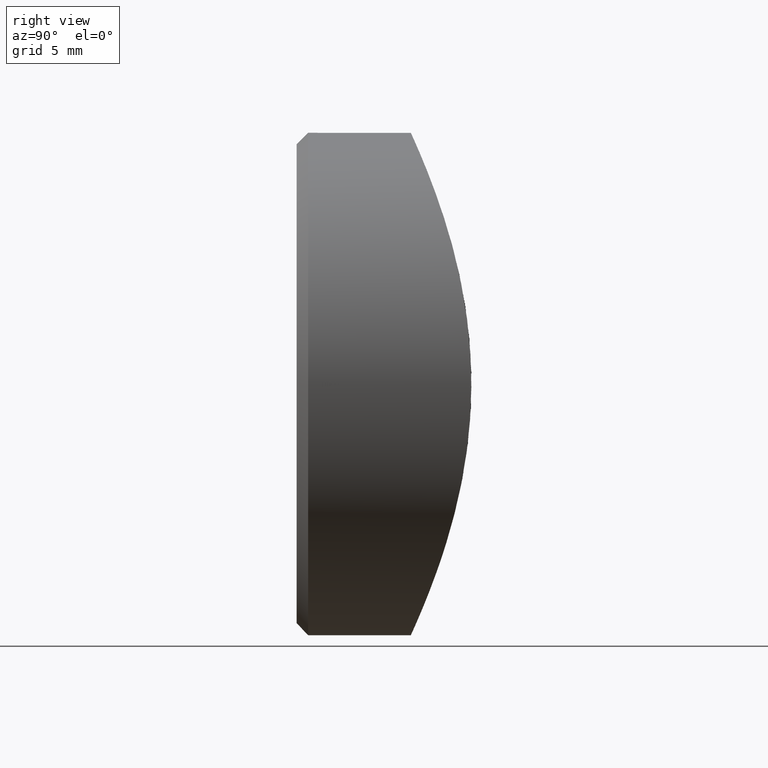
[diagram: clean part render]
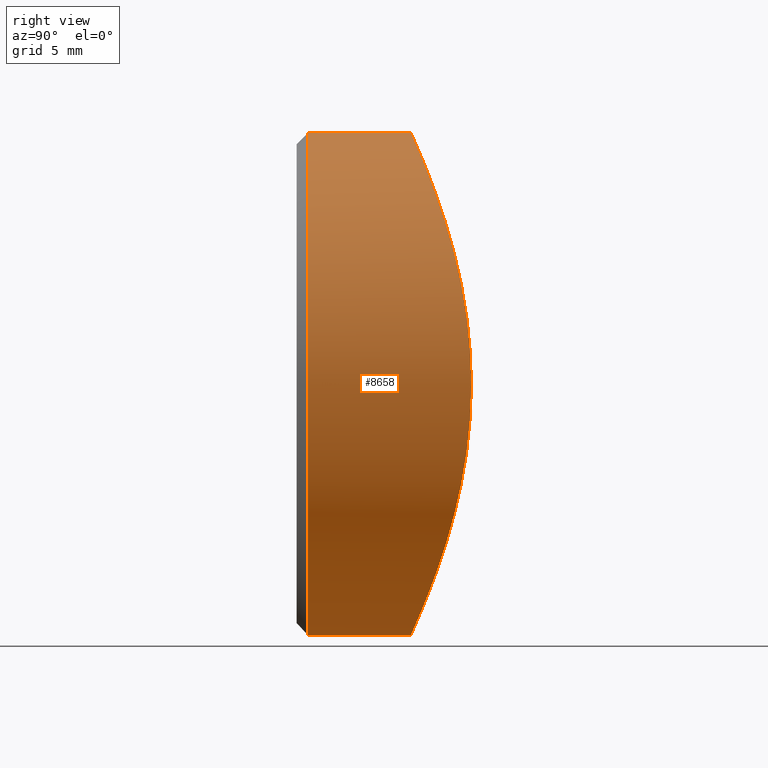
[diagram: same view with one face highlighted and labeled with its STEP entity id]
A machine part, right view. The second image highlights one B-rep face of the part: STEP entity #8658.
In plain terms, the highlighted cylindrical surface (bore or boss wall) has radius 11 mm, axis along (-0, -1, -0).
Its self-contained STEP definition (entity closure, byte-faithful):
#62 = B_SPLINE_CURVE_WITH_KNOTS ( 'NONE', 3,
 ( #3313, #4076, #5892, #7827, #1372, #6009, #479, #7905, #7743, #351, #6948, #3150, #10648, #7866, #392, #6061, #11429, #2350, #4201, #8827, #8785, #9577, #3273, #10611, #5126, #4999, #11549, #515, #4242, #9744, #5166, #2542, #8989, #562, #3353, #9785, #1536, #8908, #7196, #721, #9902, #4397, #6143, #7982, #11590, #7035, #4279, #7155, #8866, #3390, #5328, #6219, #2506, #1575, #6099, #10694, #1653, #3505, #11666, #10732, #6259, #1496, #10771, #7944, #5208, #11711, #680, #8946, #10813, #6179, #8058, #7114, #4441, #11630, #9823, #5246, #602, #11752, #1610, #7077, #8016, #3429, #9865, #8092, #4355, #2578, #5287, #9026, #9937, #10857, #8217, #1820, #3583, #6339, #4591, #10016 ),
 .UNSPECIFIED., .T., .F.,
 ( 4, 2, 2, 2, 2, 2, 2, 2, 2, 2, 2, 2, 2, 2, 2, 2, 2, 2, 2, 2, 2, 2, 2, 2, 2, 2, 2, 2, 2, 2, 2, 2, 2, 2, 2, 2, 2, 2, 2, 2, 2, 2, 2, 2, 2, 2, 2, 4 ),
 ( 0.000000000000000000, 0.002178608054429472061, 0.003267912081644207007, 0.004357216108858942387, 0.006535824163288415749, 0.007625128190503151562, 0.008714432217717888243, 0.009803736244932624924, 0.01089304027214735814, 0.01307164832657683150, 0.01416095235379156471, 0.01525025638100629966, 0.01742886443543576608, 0.01851816846265050276, 0.01960747248986523944, 0.02069677651707997612, 0.02178608054429470933, 0.02396468859872417922, 0.02614329665315364565, 0.02832190470758311901, 0.02941120873479785222, 0.03050051276201259237, 0.03267912081644205879, 0.03485772887087152522, 0.03594703289808626190, 0.03703633692530099858, 0.03921494497973046500, 0.04030424900694520168, 0.04139355303415993836, 0.04248285706137466811, 0.04357216108858940479, 0.04575076914301888509, 0.04792937719744835151, 0.05010798525187781793, 0.05119728927909255461, 0.05228659330630729130, 0.05337589733352203492, 0.05446520136073676466, 0.05664380941516623802, 0.05773311344238097470, 0.05882241746959570444, 0.06100102552402517780, 0.06317963357845464423, 0.06426893760566937397, 0.06535824163288410371, 0.06753684968731357707, 0.06862615371452830682, 0.06971545774174302268 ),
 .UNSPECIFIED. ) ;
#103 = CYLINDRICAL_SURFACE ( 'NONE', #1829, 11.00000000000000000 ) ;
#351 = CARTESIAN_POINT ( 'NONE',  ( 6.431315587605636708, 5.870073532991685106, -8.931192953940989554 ) ) ;
#392 = CARTESIAN_POINT ( 'NONE',  ( 8.268862911064539745, 6.458450175212102629, -7.263048031895190881 ) ) ;
#479 = CARTESIAN_POINT ( 'NONE',  ( 3.915977832184660112, 5.317220208741857412, -10.28565493891170490 ) ) ;
#515 = CARTESIAN_POINT ( 'NONE',  ( 10.91094150760802073, 7.605267809179670380, 1.444253460282487689 ) ) ;
#558 = EDGE_LOOP ( 'NONE', ( #11410 ) ) ;
#562 = CARTESIAN_POINT ( 'NONE',  ( 9.874944611363643432, 7.109081667782722214, 4.899886083446629570 ) ) ;
#602 = CARTESIAN_POINT ( 'NONE',  ( -10.43131633686770954, 7.366910697036294309, -3.564389067170340653 ) ) ;
#634 = VERTEX_POINT ( 'NONE', #6283 ) ;
#680 = CARTESIAN_POINT ( 'NONE',  ( -10.63401718892599135, 7.466677992951460396, 2.906335998763042827 ) ) ;
#721 = CARTESIAN_POINT ( 'NONE',  ( 5.851328576931715375, 5.717571306728308933, 9.321488921831727836 ) ) ;
#811 = FACE_OUTER_BOUND ( 'NONE', #558, .T. ) ;
#1372 = CARTESIAN_POINT ( 'NONE',  ( 2.876761681339498278, 5.169379376728268305, -10.62341111064048782 ) ) ;
#1496 = CARTESIAN_POINT ( 'NONE',  ( -8.279561685560624440, 6.457397297660646629, 7.277063041026338830 ) ) ;
#1510 = VERTEX_POINT ( 'NONE', #9058 ) ;
#1536 = CARTESIAN_POINT ( 'NONE',  ( 8.287551982738067480, 6.460397381905350400, 7.267586467979562315 ) ) ;
#1575 = CARTESIAN_POINT ( 'NONE',  ( -4.564204123080260800, 5.432796842585724484, 10.01494223412669626 ) ) ;
#1610 = CARTESIAN_POINT ( 'NONE',  ( -9.861381905228441269, 7.104359747628647526, -4.887009018968756280 ) ) ;
#1653 = CARTESIAN_POINT ( 'NONE',  ( -5.830434376454941336, 5.712383562454992791, 9.334485395747128322 ) ) ;
#1820 = CARTESIAN_POINT ( 'NONE',  ( -1.831112998186844587, 5.066882332025191893, -10.85256634668303910 ) ) ;
#1829 = AXIS2_PLACEMENT_3D ( 'NONE', #3925, #3332, #8845 ) ;
#2350 = CARTESIAN_POINT ( 'NONE',  ( 9.532190368181314710, 6.956637530396878155, -5.536169561607874989 ) ) ;
#2506 = CARTESIAN_POINT ( 'NONE',  ( -3.561777640432880698, 5.254456909521188379, 10.43253799227503364 ) ) ;
#2542 = CARTESIAN_POINT ( 'NONE',  ( 10.41570146741584502, 7.361255542780567929, 3.555797768890980315 ) ) ;
#2578 = CARTESIAN_POINT ( 'NONE',  ( -5.849347822948074871, 5.717109365942683930, -9.322616890321899774 ) ) ;
#3150 = CARTESIAN_POINT ( 'NONE',  ( 7.269484953319691911, 6.118294888725597680, -8.263246781034496280 ) ) ;
#3273 = CARTESIAN_POINT ( 'NONE',  ( 10.71001051426899231, 7.504570094164964011, -2.535243297355493031 ) ) ;
#3313 = CARTESIAN_POINT ( 'NONE',  ( 1.084202172485504434E-16, 4.999999999999996447, -11.00000000000000000 ) ) ;
#3332 = DIRECTION ( 'NONE',  ( -0.000000000000000000, -1.000000000000000000, -0.000000000000000000 ) ) ;
#3353 = CARTESIAN_POINT ( 'NONE',  ( 9.536850622506840125, 6.958698308071539884, 5.527643662790154622 ) ) ;
#3390 = CARTESIAN_POINT ( 'NONE',  ( -1.436824161151505796, 5.040009660985223405, 10.91192690383145347 ) ) ;
#3429 = CARTESIAN_POINT ( 'NONE',  ( -8.742573321952479048, 6.633944945074482291, -6.713641661070576916 ) ) ;
#3505 = CARTESIAN_POINT ( 'NONE',  ( -6.421447291611215746, 5.867370338110720951, 8.938209960759646577 ) ) ;
#3583 = CARTESIAN_POINT ( 'NONE',  ( -1.470656143557993678, 5.042032289971624337, -10.90746038294738440 ) ) ;
#3876 = ORIENTED_EDGE ( 'NONE', *, *, #6829, .T. ) ;
#3925 = CARTESIAN_POINT ( 'NONE',  ( 0.000000000000000000, 12.00000000000000000, 0.000000000000000000 ) ) ;
#4076 = CARTESIAN_POINT ( 'NONE',  ( 0.7373352939640648307, 4.999999999999996447, -11.00000000000000000 ) ) ;
#4201 = CARTESIAN_POINT ( 'NONE',  ( 9.869038933788958801, 7.106471848057045015, -4.910430648366249429 ) ) ;
#4242 = CARTESIAN_POINT ( 'NONE',  ( 10.85707551301406504, 7.577964300432519451, 1.804179211245290571 ) ) ;
#4279 = CARTESIAN_POINT ( 'NONE',  ( 0.7475394728106166120, 5.000639928492340402, 10.99859506407430132 ) ) ;
#4355 = CARTESIAN_POINT ( 'NONE',  ( -6.732854687636161017, 5.949523680724785102, -8.727708193182559526 ) ) ;
#4378 = DIRECTION ( 'NONE',  ( 0.000000000000000000, 0.000000000000000000, 1.000000000000000000 ) ) ;
#4397 = CARTESIAN_POINT ( 'NONE',  ( 4.911204265845181105, 5.502445445854513117, 9.849285748434109422 ) ) ;
#4441 = CARTESIAN_POINT ( 'NONE',  ( -10.98317470998035361, 7.642002501483251109, -0.7088608471267813238 ) ) ;
#4591 = CARTESIAN_POINT ( 'NONE',  ( -0.3686676469820269753, 4.999999999999996447, -11.00000000000000178 ) ) ;
#4999 = CARTESIAN_POINT ( 'NONE',  ( 11.00061192498013085, 7.650952631010586202, 0.3453966184975004738 ) ) ;
#5126 = CARTESIAN_POINT ( 'NONE',  ( 10.99872709140375449, 7.649988270675690316, -0.7476955002935699035 ) ) ;
#5166 = CARTESIAN_POINT ( 'NONE',  ( 10.62658207698087764, 7.463322627900607742, 2.864661968324965891 ) ) ;
#5208 = CARTESIAN_POINT ( 'NONE',  ( -9.868145379816949614, 7.106061474000257228, 4.912470034786293738 ) ) ;
#5246 = CARTESIAN_POINT ( 'NONE',  ( -10.64295360786469757, 7.471075141436059219, -2.874660073961584406 ) ) ;
#5287 = CARTESIAN_POINT ( 'NONE',  ( -5.544450198649841788, 5.642847612469666707, -9.507256185149804750 ) ) ;
#5328 = CARTESIAN_POINT ( 'NONE',  ( -1.801419535069120226, 5.064618212083442650, 10.85758647217778972 ) ) ;
#5424 = CARTESIAN_POINT ( 'NONE',  ( 0.000000000000000000, 0.5000000000000004441, 0.000000000000000000 ) ) ;
#5630 = EDGE_LOOP ( 'NONE', ( #3876 ) ) ;
#5892 = CARTESIAN_POINT ( 'NONE',  ( 1.460482144242938096, 5.033668704119548920, -10.92662987896756555 ) ) ;
#6009 = CARTESIAN_POINT ( 'NONE',  ( 3.573101630393023420, 5.263207247782476728, -10.40987829591612979 ) ) ;
#6061 = CARTESIAN_POINT ( 'NONE',  ( 8.719854577397178730, 6.627907214429296090, -6.714915986417163474 ) ) ;
#6084 = EDGE_CURVE ( 'NONE', #634, #634, #7204, .T. ) ;
#6099 = CARTESIAN_POINT ( 'NONE',  ( -4.892674777027119504, 5.498593694250464736, 9.858525424685472771 ) ) ;
#6143 = CARTESIAN_POINT ( 'NONE',  ( 4.588708995713818517, 5.437587158046544467, 10.00358501035350045 ) ) ;
#6179 = CARTESIAN_POINT ( 'NONE',  ( -10.98091897800039973, 7.640847868418018329, 0.7437699704348061935 ) ) ;
#6219 = CARTESIAN_POINT ( 'NONE',  ( -2.871390683612129457, 5.160616340010109937, 10.64350980225284893 ) ) ;
#6259 = CARTESIAN_POINT ( 'NONE',  ( -7.524280627312167624, 6.200524715818435340, 8.031929910891497215 ) ) ;
#6283 = CARTESIAN_POINT ( 'NONE',  ( 0.000000000000000000, 0.5000000000000004441, 11.00000000000000000 ) ) ;
#6339 = CARTESIAN_POINT ( 'NONE',  ( -0.7381113737435325284, 5.008497805639639644, -10.98138029111559533 ) ) ;
#6829 = EDGE_CURVE ( 'NONE', #1510, #1510, #62, .T. ) ;
#6948 = CARTESIAN_POINT ( 'NONE',  ( 6.720146454890202570, 5.952058637799959584, -8.715864298831466073 ) ) ;
#7035 = CARTESIAN_POINT ( 'NONE',  ( 1.470457804476350328, 5.033993559612254920, 10.92594708271581183 ) ) ;
#7077 = CARTESIAN_POINT ( 'NONE',  ( -9.520591750708756962, 6.955058235397883593, -5.521597861904218085 ) ) ;
#7114 = CARTESIAN_POINT ( 'NONE',  ( -11.00055092638194942, 7.650921421657838728, -0.3460681376236847129 ) ) ;
#7155 = CARTESIAN_POINT ( 'NONE',  ( -0.3423183802106280482, 4.999693689142266528, 11.00067249254755097 ) ) ;
#7196 = CARTESIAN_POINT ( 'NONE',  ( 6.742036676809132878, 5.952058630764645031, 8.721109378327863482 ) ) ;
#7204 = CIRCLE ( 'NONE', #11762, 11.00000000000000000 ) ;
#7743 = CARTESIAN_POINT ( 'NONE',  ( 5.540298174689874067, 5.636072592561188976, -9.529806252340371486 ) ) ;
#7827 = CARTESIAN_POINT ( 'NONE',  ( 2.525208552206620993, 5.129741725276113051, -10.71234726468770937 ) ) ;
#7866 = CARTESIAN_POINT ( 'NONE',  ( 8.031209664304178375, 6.372997889905265723, -7.524933132409590719 ) ) ;
#7905 = CARTESIAN_POINT ( 'NONE',  ( 4.912116106359735390, 5.495217921090500113, -9.868608563304301029 ) ) ;
#7944 = CARTESIAN_POINT ( 'NONE',  ( -9.522407206998154905, 6.952479692061137584, 5.552361461789049990 ) ) ;
#7982 = CARTESIAN_POINT ( 'NONE',  ( 3.599248416544880591, 5.260315971651381872, 10.41908172838930824 ) ) ;
#8016 = CARTESIAN_POINT ( 'NONE',  ( -9.336250629573374482, 6.876638554916572943, -5.827591041119413617 ) ) ;
#8058 = CARTESIAN_POINT ( 'NONE',  ( -10.99942252328895798, 7.650344082850598859, 0.3802472800228698380 ) ) ;
#8092 = CARTESIAN_POINT ( 'NONE',  ( -7.281371723956644004, 6.117638243927015829, -8.276144015586270442 ) ) ;
#8161 = DIRECTION ( 'NONE',  ( -0.000000000000000000, 1.000000000000000000, -0.000000000000000000 ) ) ;
#8217 = CARTESIAN_POINT ( 'NONE',  ( -2.895967367792745772, 5.163670587368400788, -10.63663750862198043 ) ) ;
#8658 = ADVANCED_FACE ( 'NONE', ( #811, #10307 ), #103, .T. ) ;
#8785 = CARTESIAN_POINT ( 'NONE',  ( 10.40591366907983684, 7.356571556339081219, -3.584482102368395484 ) ) ;
#8827 = CARTESIAN_POINT ( 'NONE',  ( 10.28317995689977238, 7.298184270190479772, -3.922215525857662755 ) ) ;
#8845 = DIRECTION ( 'NONE',  ( 0.000000000000000000, 0.000000000000000000, -1.000000000000000000 ) ) ;
#8866 = CARTESIAN_POINT ( 'NONE',  ( -0.7065235766954285346, 5.007570083915991788, 10.98341644754504109 ) ) ;
#8908 = CARTESIAN_POINT ( 'NONE',  ( 7.287422222147068140, 6.119692529412676940, 8.270115373578688533 ) ) ;
#8946 = CARTESIAN_POINT ( 'NONE',  ( -10.85159692423954425, 7.575201903545721649, 1.837150462497468162 ) ) ;
#8989 = CARTESIAN_POINT ( 'NONE',  ( 10.29246481296904570, 7.302547149037327934, 3.898207504848541394 ) ) ;
#9026 = CARTESIAN_POINT ( 'NONE',  ( -4.912829140748718793, 5.502774978664163541, -9.848500292389068989 ) ) ;
#9058 = CARTESIAN_POINT ( 'NONE',  ( 0.000000000000000000, 4.999999999999997335, -11.00000000000000000 ) ) ;
#9577 = CARTESIAN_POINT ( 'NONE',  ( 10.61943515266535876, 7.459814208825996218, -2.891219166524257478 ) ) ;
#9744 = CARTESIAN_POINT ( 'NONE',  ( 10.71489734369328595, 7.506992172232205718, 2.514383868007016076 ) ) ;
#9785 = CARTESIAN_POINT ( 'NONE',  ( 8.745174169686665167, 6.634953490608967996, 6.710312436886853860 ) ) ;
#9823 = CARTESIAN_POINT ( 'NONE',  ( -10.85828940959069477, 7.578572434162449412, -1.797660732053670607 ) ) ;
#9865 = CARTESIAN_POINT ( 'NONE',  ( -8.293045352209928112, 6.462261879349053828, -7.262116271125732325 ) ) ;
#9902 = CARTESIAN_POINT ( 'NONE',  ( 5.541697531667751697, 5.642206564637964661, 9.508835131743046176 ) ) ;
#9937 = CARTESIAN_POINT ( 'NONE',  ( -4.584107613480061794, 5.436646200050866184, -10.00582852889872143 ) ) ;
#10016 = CARTESIAN_POINT ( 'NONE',  ( 1.084202172485504434E-16, 4.999999999999996447, -11.00000000000000000 ) ) ;
#10307 = FACE_OUTER_BOUND ( 'NONE', #5630, .T. ) ;
#10611 = CARTESIAN_POINT ( 'NONE',  ( 10.92578515119084059, 7.612229388195771662, -1.467771780683541305 ) ) ;
#10648 = CARTESIAN_POINT ( 'NONE',  ( 7.531520159280275628, 6.202922672252406677, -8.025032798039097415 ) ) ;
#10694 = CARTESIAN_POINT ( 'NONE',  ( -5.524852246443960446, 5.638230726541029192, 9.518655245248165642 ) ) ;
#10732 = CARTESIAN_POINT ( 'NONE',  ( -7.257807187946527350, 6.114602507525026986, 8.273531376570410600 ) ) ;
#10771 = CARTESIAN_POINT ( 'NONE',  ( -8.728872755358189295, 6.628611782174391287, 6.731399352216163479 ) ) ;
#10813 = CARTESIAN_POINT ( 'NONE',  ( -10.90725868243714025, 7.603401311219752046, 1.471558155401797130 ) ) ;
#10857 = CARTESIAN_POINT ( 'NONE',  ( -3.583987409403218916, 5.257819302890103685, -10.42485601320213107 ) ) ;
#11410 = ORIENTED_EDGE ( 'NONE', *, *, #6084, .T. ) ;
#11429 = CARTESIAN_POINT ( 'NONE',  ( 8.934144680884960721, 6.712310021937992310, -6.427208996021954945 ) ) ;
#11549 = CARTESIAN_POINT ( 'NONE',  ( 10.98291064618921986, 7.641866573446292499, 0.7142733214989006596 ) ) ;
#11590 = CARTESIAN_POINT ( 'NONE',  ( 2.908825708952260669, 5.164947450912122484, 10.63378102106630507 ) ) ;
#11630 = CARTESIAN_POINT ( 'NONE',  ( -10.91224439171575789, 7.605928763540939386, -1.433712923150652907 ) ) ;
#11666 = CARTESIAN_POINT ( 'NONE',  ( -6.706876668531449148, 5.948208944849986857, 8.726104054479970173 ) ) ;
#11711 = CARTESIAN_POINT ( 'NONE',  ( -10.42169471001031233, 7.362301673958276282, 3.591787083224577959 ) ) ;
#11752 = CARTESIAN_POINT ( 'NONE',  ( -10.01664089206847841, 7.174727185663530626, -4.560286473987483546 ) ) ;
#11762 = AXIS2_PLACEMENT_3D ( 'NONE', #5424, #8161, #4378 ) ;